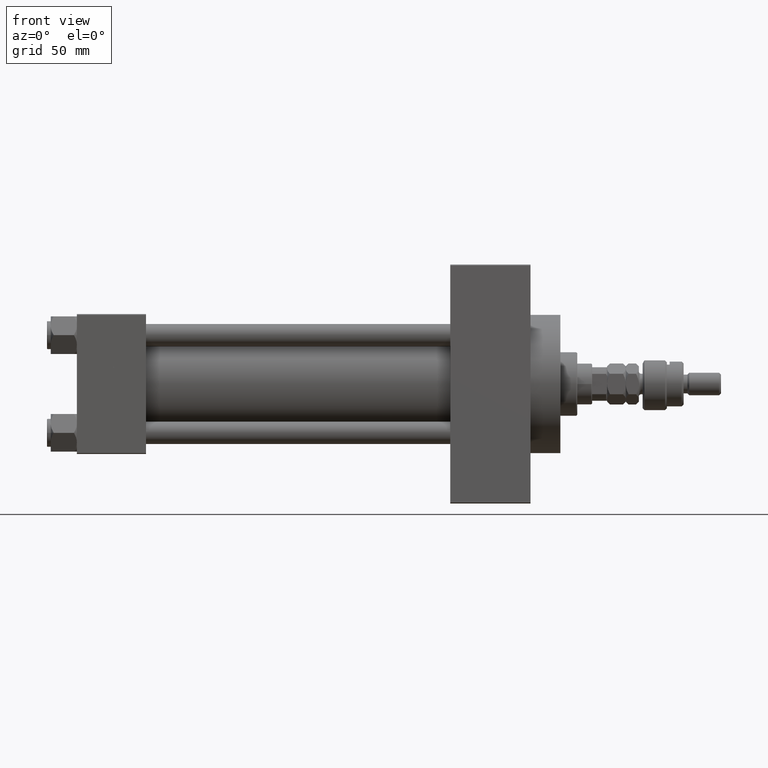
[diagram: clean part render]
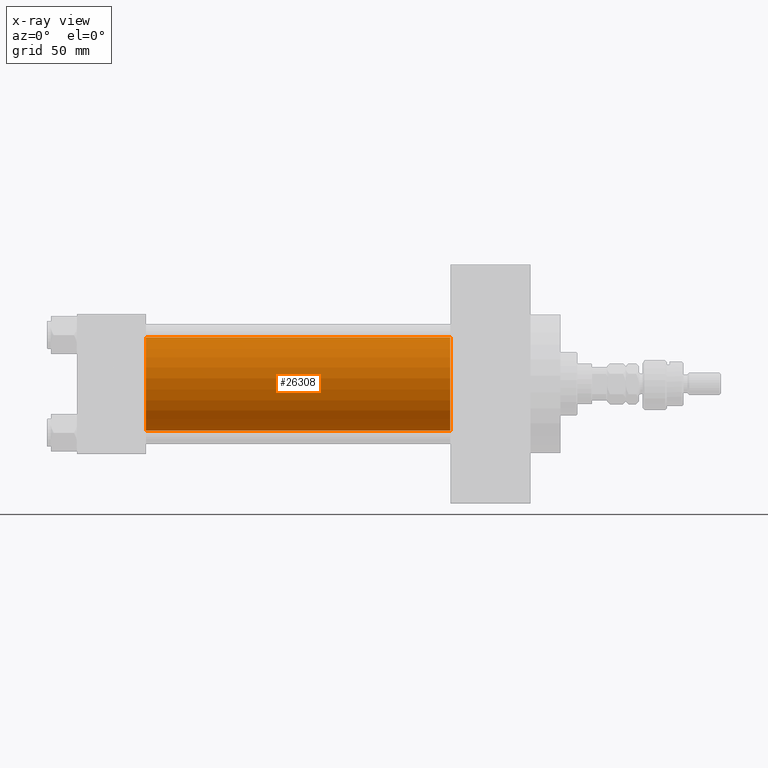
[diagram: x-ray — body ghosted, one internal face saturated and labeled with its STEP entity id]
A machine part, front view, then the same camera in x-ray: the body is ghosted and one INTERNAL B-rep face — a face not visible from any outside direction — is saturated and labeled: STEP entity #26308.
In plain terms, the highlighted cylindrical surface (partial cylindrical patch) has radius 25 mm, axis along (-1, -0, -0).
Its self-contained STEP definition (entity closure, byte-faithful):
#836 = LINE ( 'NONE', #41309, #49008 ) ;
#2678 = CARTESIAN_POINT ( 'NONE',  ( 200.0000000000000000, 4.595317839031724996E-16, -25.00000000000000000 ) ) ;
#4435 = CARTESIAN_POINT ( 'NONE',  ( 200.0000000000000000, -2.602085213965210642E-15, 25.00000000000000000 ) ) ;
#4886 = CARTESIAN_POINT ( 'NONE',  ( 37.00000000000000000, -2.602085213965210642E-15, 25.00000000000000000 ) ) ;
#5835 = CARTESIAN_POINT ( 'NONE',  ( 200.0000000000000000, 4.595317839031724996E-16, -25.00000000000000000 ) ) ;
#8339 = FACE_OUTER_BOUND ( 'NONE', #29154, .T. ) ;
#9564 = DIRECTION ( 'NONE',  ( -1.000000000000000000, -0.000000000000000000, -0.000000000000000000 ) ) ;
#9781 = VERTEX_POINT ( 'NONE', #4435 ) ;
#10884 = EDGE_CURVE ( 'NONE', #9781, #46042, #836, .T. ) ;
#12108 = DIRECTION ( 'NONE',  ( 1.000000000000000000, 0.000000000000000000, 0.000000000000000000 ) ) ;
#14915 = CARTESIAN_POINT ( 'NONE',  ( 37.00000000000000000, -2.602085213965210642E-15, 0.000000000000000000 ) ) ;
#16600 = VERTEX_POINT ( 'NONE', #16624 ) ;
#16624 = CARTESIAN_POINT ( 'NONE',  ( 37.00000000000000000, 4.595317839031724996E-16, -25.00000000000000000 ) ) ;
#23104 = DIRECTION ( 'NONE',  ( 0.000000000000000000, 0.000000000000000000, -1.000000000000000000 ) ) ;
#23278 = ORIENTED_EDGE ( 'NONE', *, *, #10884, .F. ) ;
#24454 = DIRECTION ( 'NONE',  ( 0.000000000000000000, 0.000000000000000000, 1.000000000000000000 ) ) ;
#25412 = VECTOR ( 'NONE', #9564, 1000.000000000000000 ) ;
#25444 = CIRCLE ( 'NONE', #42375, 25.00000000000000000 ) ;
#26308 = ADVANCED_FACE ( 'NONE', ( #8339 ), #35866, .F. ) ;
#28170 = CARTESIAN_POINT ( 'NONE',  ( 200.0000000000000000, -2.602085213965210642E-15, 0.000000000000000000 ) ) ;
#29154 = EDGE_LOOP ( 'NONE', ( #49917, #38284, #38009, #23278 ) ) ;
#31877 = DIRECTION ( 'NONE',  ( -1.000000000000000000, -0.000000000000000000, -0.000000000000000000 ) ) ;
#32454 = AXIS2_PLACEMENT_3D ( 'NONE', #28170, #31877, #24454 ) ;
#35866 = CYLINDRICAL_SURFACE ( 'NONE', #32454, 25.00000000000000000 ) ;
#37143 = EDGE_CURVE ( 'NONE', #40410, #16600, #46323, .T. ) ;
#37701 = EDGE_CURVE ( 'NONE', #9781, #40410, #25444, .T. ) ;
#38009 = ORIENTED_EDGE ( 'NONE', *, *, #38187, .F. ) ;
#38187 = EDGE_CURVE ( 'NONE', #46042, #16600, #49976, .T. ) ;
#38284 = ORIENTED_EDGE ( 'NONE', *, *, #37143, .T. ) ;
#40410 = VERTEX_POINT ( 'NONE', #2678 ) ;
#40681 = AXIS2_PLACEMENT_3D ( 'NONE', #14915, #47190, #23104 ) ;
#41309 = CARTESIAN_POINT ( 'NONE',  ( 200.0000000000000000, -2.602085213965210642E-15, 25.00000000000000000 ) ) ;
#42375 = AXIS2_PLACEMENT_3D ( 'NONE', #44627, #12108, #44112 ) ;
#44112 = DIRECTION ( 'NONE',  ( 0.000000000000000000, 0.000000000000000000, -1.000000000000000000 ) ) ;
#44627 = CARTESIAN_POINT ( 'NONE',  ( 200.0000000000000000, -2.602085213965210642E-15, 0.000000000000000000 ) ) ;
#45538 = DIRECTION ( 'NONE',  ( -1.000000000000000000, -0.000000000000000000, -0.000000000000000000 ) ) ;
#46042 = VERTEX_POINT ( 'NONE', #4886 ) ;
#46323 = LINE ( 'NONE', #5835, #25412 ) ;
#47190 = DIRECTION ( 'NONE',  ( 1.000000000000000000, 0.000000000000000000, 0.000000000000000000 ) ) ;
#49008 = VECTOR ( 'NONE', #45538, 1000.000000000000000 ) ;
#49917 = ORIENTED_EDGE ( 'NONE', *, *, #37701, .T. ) ;
#49976 = CIRCLE ( 'NONE', #40681, 25.00000000000000000 ) ;